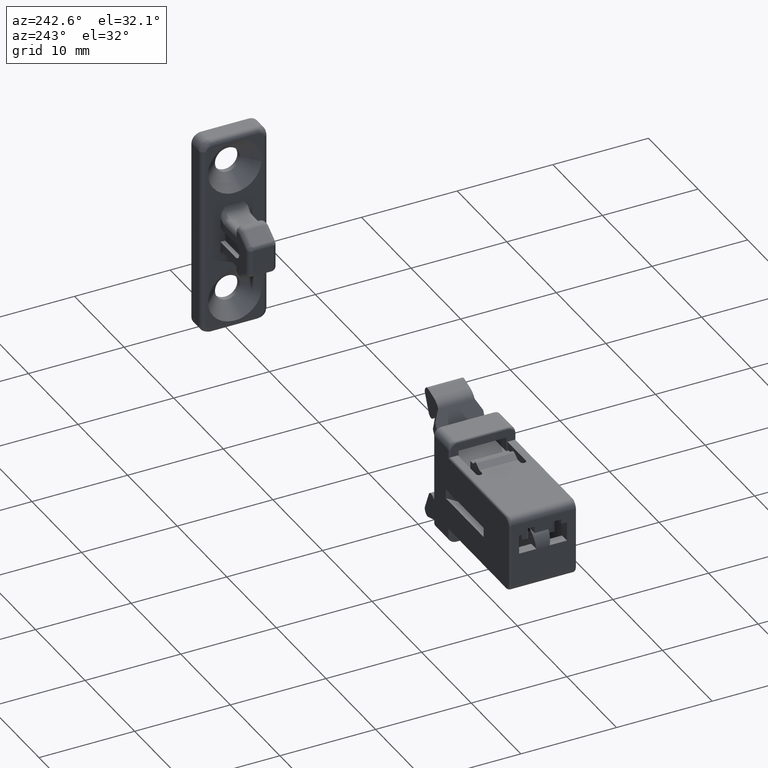
[diagram: clean part render]
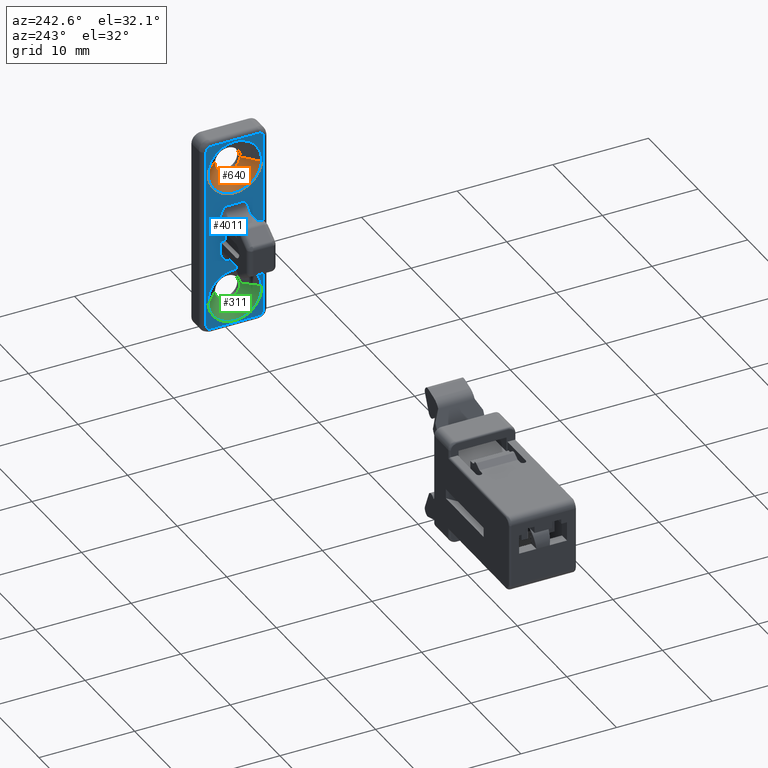
[diagram: same view with three faces highlighted in distinct colors, each labeled with its STEP entity id]
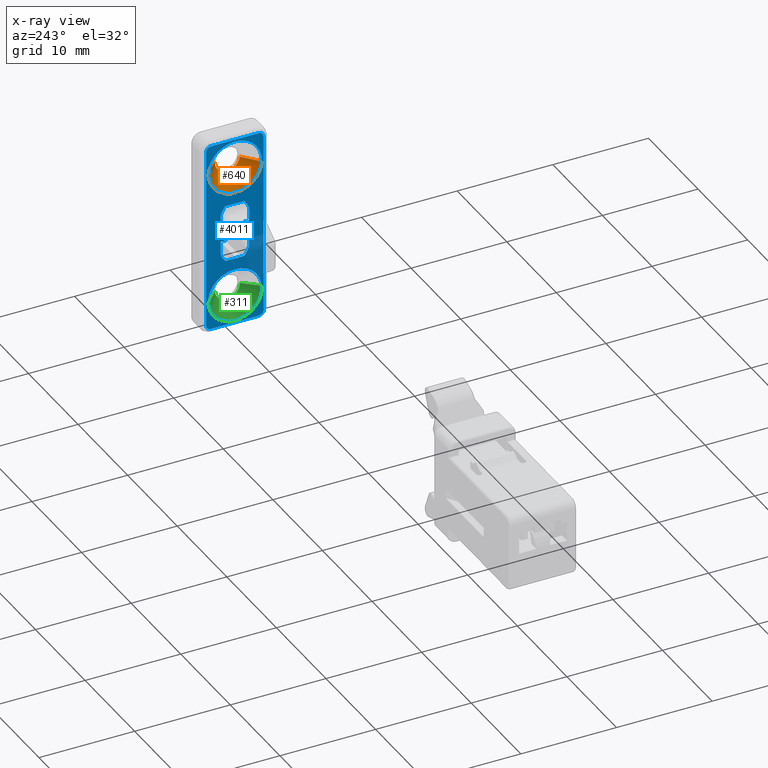
[diagram: x-ray of the same camera — body ghosted, the three highlighted faces saturated]
A machine part, auxiliary view with three faces highlighted in distinct colors.
The next image is the same camera in x-ray (body ghosted, the three faces saturated) — at least one of them is partly hidden behind the body in this view.
Their STEP definitions:

[orange] entity #640 — the highlighted face is a freeform B-spline surface patch.
#386=CARTESIAN_POINT('',(48.472754035771999,0.457103366790558,5.783013347620964));
#387=VERTEX_POINT('',#386);
#388=CARTESIAN_POINT('',(48.472754035772013,0.0,5.700000000000000));
#389=VERTEX_POINT('',#388);
#390=CARTESIAN_POINT('',(48.472754035772006,0.457103366790558,5.783013347620964));
#391=CARTESIAN_POINT('',(48.472754035772006,0.236089601976736,5.700000000000000));
#392=CARTESIAN_POINT('',(48.472754035772013,0.0,5.700000000000000));
#400=(BOUNDED_CURVE()B_SPLINE_CURVE(2,(#390,#391,#392),.UNSPECIFIED.,.F.,.U.)B_SPLINE_CURVE_WITH_KNOTS((3,3),(0.440284170877750,0.500000000000000),.UNSPECIFIED.)CURVE()GEOMETRIC_REPRESENTATION_ITEM()RATIONAL_B_SPLINE_CURVE((0.893499554609872,0.930038554377081,1.0))REPRESENTATION_ITEM(''));
#401=EDGE_CURVE('',#387,#389,#400,.T.);
#403=CARTESIAN_POINT('',(48.472754035625762,-1.297575237987626,6.920636898047811));
#404=VERTEX_POINT('',#403);
#405=CARTESIAN_POINT('',(48.472754035772013,0.0,5.700000000000000));
#406=CARTESIAN_POINT('',(48.472754035772006,-1.222917884891000,5.699999999999999));
#407=CARTESIAN_POINT('',(48.472754035625755,-1.297575237987627,6.920636898047811));
#415=(BOUNDED_CURVE()B_SPLINE_CURVE(2,(#405,#406,#407),.UNSPECIFIED.,.F.,.U.)B_SPLINE_CURVE_WITH_KNOTS((3,3),(0.500000000000000,0.739332961948138),.UNSPECIFIED.)CURVE()GEOMETRIC_REPRESENTATION_ITEM()RATIONAL_B_SPLINE_CURVE((1.0,0.719603993627410,0.976072041043467))REPRESENTATION_ITEM(''));
#416=EDGE_CURVE('',#389,#404,#415,.T.);
#485=CARTESIAN_POINT('',(48.472754035655157,1.290912384281071,7.153444505973802));
#486=VERTEX_POINT('',#485);
#487=CARTESIAN_POINT('',(48.472754035655164,1.290912384281071,7.153444505973804));
#488=CARTESIAN_POINT('',(48.472754035772006,1.300000000000000,7.076991356463288));
#489=CARTESIAN_POINT('',(48.472754035772013,1.300000000000000,7.0));
#490=CARTESIAN_POINT('',(48.472754035772020,1.300000000000000,6.099607525726101));
#491=CARTESIAN_POINT('',(48.472754035771999,0.457103366790558,5.783013347620964));
#499=(BOUNDED_CURVE()B_SPLINE_CURVE(2,(#487,#488,#489,#490,#491),.UNSPECIFIED.,.F.,.U.)B_SPLINE_CURVE_WITH_KNOTS((3,2,3),(0.229562473278362,0.250000000000000,0.440284170877750),.UNSPECIFIED.)CURVE()GEOMETRIC_REPRESENTATION_ITEM()RATIONAL_B_SPLINE_CURVE((0.956026753722804,0.976055948055655,1.0,0.777068226809467,0.893499554609872))REPRESENTATION_ITEM(''));
#500=EDGE_CURVE('',#486,#387,#499,.T.);
#569=CARTESIAN_POINT('',(48.510254035772007,1.253674527034122,7.149018221254156));
#570=CARTESIAN_POINT('',(48.510254035772014,1.257939364503858,7.113138594905446));
#571=CARTESIAN_POINT('',(48.510254035772007,1.260145183007600,7.077073781162756));
#572=CARTESIAN_POINT('',(48.510254035772014,1.337218964170357,5.816928598155156));
#573=CARTESIAN_POINT('',(48.510254035772007,0.077073781162757,5.739854816992400));
#574=CARTESIAN_POINT('',(48.510254035772014,-1.183071401844844,5.662781035829644));
#575=CARTESIAN_POINT('',(48.510254035772007,-1.260145183007600,6.922926218837244));
#576=CARTESIAN_POINT('',(46.934316535771998,2.818595477487886,7.335032797933545));
#577=CARTESIAN_POINT('',(46.934316535771991,2.828183972224918,7.254365806318361));
#578=CARTESIAN_POINT('',(46.934316535771991,2.833143241895584,7.173282463935972));
#579=CARTESIAN_POINT('',(46.934316535771998,3.006425705831556,4.340139222040389));
#580=CARTESIAN_POINT('',(46.934316535771991,0.173282463935972,4.166856758104416));
#581=CARTESIAN_POINT('',(46.934316535771998,-2.659860777959612,3.993574294168444));
#582=CARTESIAN_POINT('',(46.934316535771991,-2.833143241895584,6.826717536064028));
#590=(BOUNDED_SURFACE()B_SPLINE_SURFACE(2,1,((#569,#576),(#570,#577),(#571,#578),(#572,#579),(#573,#580),(#574,#581),(#575,#582)),.UNSPECIFIED.,.F.,.F.,.U.)B_SPLINE_SURFACE_WITH_KNOTS((3,2,2,3),(2,2),(0.0,0.188115089351743,4.890992323145298,9.593869556938854),(0.0,2.228712185952387),.UNSPECIFIED.)GEOMETRIC_REPRESENTATION_ITEM()RATIONAL_B_SPLINE_SURFACE(((0.977505800795127,0.977505800795127),(0.988284271247462,0.988284271247462),(1.0,1.0),(0.707106781186548,0.707106781186548),(1.0,1.0),(0.707106781186548,0.707106781186548),(1.0,1.0)))REPRESENTATION_ITEM('')SURFACE());
#591=ORIENTED_EDGE('',*,*,#500,.F.);
#592=CARTESIAN_POINT('',(46.972754035748373,2.780426673819996,7.330495857224559));
#593=VERTEX_POINT('',#592);
#594=CARTESIAN_POINT('',(48.472754035655157,1.290912384281071,7.153444505973802));
#595=CARTESIAN_POINT('',(46.972754035748373,2.780426673819996,7.330495857224559));
#596=QUASI_UNIFORM_CURVE('',1,(#594,#595),.UNSPECIFIED.,.F.,.U.);
#597=EDGE_CURVE('',#486,#593,#596,.T.);
#598=ORIENTED_EDGE('',*,*,#597,.T.);
#599=CARTESIAN_POINT('',(46.972754035771999,0.0,4.200000000000000));
#600=VERTEX_POINT('',#599);
#601=CARTESIAN_POINT('',(46.972754035748373,2.780426673819996,7.330495857224559));
#602=CARTESIAN_POINT('',(46.972754035772006,2.800000000000000,7.165827535210128));
#603=CARTESIAN_POINT('',(46.972754035771999,2.800000000000000,7.0));
#604=CARTESIAN_POINT('',(46.972754035771992,2.800000000000000,4.200000000000001));
#605=CARTESIAN_POINT('',(46.972754035771999,0.0,4.200000000000000));
#613=(BOUNDED_CURVE()B_SPLINE_CURVE(2,(#601,#602,#603,#604,#605),.UNSPECIFIED.,.F.,.U.)B_SPLINE_CURVE_WITH_KNOTS((3,2,3),(0.229562473493416,0.250000000000000,0.500000000000000),.UNSPECIFIED.)CURVE()GEOMETRIC_REPRESENTATION_ITEM()RATIONAL_B_SPLINE_CURVE((0.956026754144318,0.976055948307606,1.0,0.707106781186547,1.0))REPRESENTATION_ITEM(''));
#614=EDGE_CURVE('',#593,#600,#613,.T.);
#615=ORIENTED_EDGE('',*,*,#614,.T.);
#616=CARTESIAN_POINT('',(46.972754035702188,-2.794777435618764,6.829064088772516));
#617=VERTEX_POINT('',#616);
#618=CARTESIAN_POINT('',(46.972754035771999,0.0,4.200000000000000));
#619=CARTESIAN_POINT('',(46.972754035771992,-2.633976986343336,4.200000000000000));
#620=CARTESIAN_POINT('',(46.972754035702188,-2.794777435618764,6.829064088772516));
#628=(BOUNDED_CURVE()B_SPLINE_CURVE(2,(#618,#619,#620),.UNSPECIFIED.,.F.,.U.)B_SPLINE_CURVE_WITH_KNOTS((3,3),(0.500000000000000,0.739332962177066),.UNSPECIFIED.)CURVE()GEOMETRIC_REPRESENTATION_ITEM()RATIONAL_B_SPLINE_CURVE((1.0,0.719603993359204,0.976072041534103))REPRESENTATION_ITEM(''));
#629=EDGE_CURVE('',#600,#617,#628,.T.);
#630=ORIENTED_EDGE('',*,*,#629,.T.);
#631=CARTESIAN_POINT('',(48.472754035625762,-1.297575237987626,6.920636898047811));
#632=CARTESIAN_POINT('',(46.972754035702188,-2.794777435618764,6.829064088772516));
#633=QUASI_UNIFORM_CURVE('',1,(#631,#632),.UNSPECIFIED.,.F.,.U.);
#634=EDGE_CURVE('',#404,#617,#633,.T.);
#635=ORIENTED_EDGE('',*,*,#634,.F.);
#636=ORIENTED_EDGE('',*,*,#416,.F.);
#637=ORIENTED_EDGE('',*,*,#401,.F.);
#638=EDGE_LOOP('',(#591,#598,#615,#630,#635,#636,#637));
#639=FACE_OUTER_BOUND('',#638,.T.);
#640=ADVANCED_FACE('',(#639),#590,.F.);

[blue] entity #4011 — the highlighted face is a freeform B-spline surface patch.
#264=CARTESIAN_POINT('',(46.972754035704128,2.791368534479821,-7.219685468559268));
#265=VERTEX_POINT('',#264);
#271=CARTESIAN_POINT('',(46.972754035771999,0.0,-9.799999999999999));
#272=VERTEX_POINT('',#271);
#273=CARTESIAN_POINT('',(46.972754035771999,0.0,-9.799999999999999));
#274=CARTESIAN_POINT('',(46.972754035772013,2.588293375683145,-9.799999999999999));
#275=CARTESIAN_POINT('',(46.972754035704128,2.791368534479821,-7.219685468559268));
#283=(BOUNDED_CURVE()B_SPLINE_CURVE(2,(#273,#274,#275),.UNSPECIFIED.,.F.,.U.)B_SPLINE_CURVE_WITH_KNOTS((3,3),(0.0,0.236331300569392),.UNSPECIFIED.)CURVE()GEOMETRIC_REPRESENTATION_ITEM()RATIONAL_B_SPLINE_CURVE((1.0,0.723120658679445,0.969723356039558))REPRESENTATION_ITEM(''));
#284=EDGE_CURVE('',#272,#265,#283,.T.);
#286=CARTESIAN_POINT('',(46.972754035704121,-2.791368534479823,-6.780314531440732));
#287=VERTEX_POINT('',#286);
#288=CARTESIAN_POINT('',(46.972754035704128,-2.791368534479823,-6.780314531440733));
#289=CARTESIAN_POINT('',(46.972754035772006,-2.800000000000000,-6.889987699860155));
#290=CARTESIAN_POINT('',(46.972754035771999,-2.800000000000000,-7.0));
#291=CARTESIAN_POINT('',(46.972754035771992,-2.800000000000000,-9.800000000000001));
#292=CARTESIAN_POINT('',(46.972754035771999,0.0,-9.799999999999999));
#300=(BOUNDED_CURVE()B_SPLINE_CURVE(2,(#288,#289,#290,#291,#292),.UNSPECIFIED.,.F.,.U.)B_SPLINE_CURVE_WITH_KNOTS((3,2,3),(0.736331300569392,0.750000000000000,1.0),.UNSPECIFIED.)CURVE()GEOMETRIC_REPRESENTATION_ITEM()RATIONAL_B_SPLINE_CURVE((0.969723356039558,0.983986122507103,1.0,0.707106781186547,1.0))REPRESENTATION_ITEM(''));
#301=EDGE_CURVE('',#287,#272,#300,.T.);
#334=CARTESIAN_POINT('',(46.972754035771999,0.0,-4.200000000000000));
#335=VERTEX_POINT('',#334);
#336=CARTESIAN_POINT('',(46.972754035771999,0.0,-4.200000000000000));
#337=CARTESIAN_POINT('',(46.972754035772006,-2.588293375683145,-4.200000000000001));
#338=CARTESIAN_POINT('',(46.972754035704128,-2.791368534479823,-6.780314531440733));
#346=(BOUNDED_CURVE()B_SPLINE_CURVE(2,(#336,#337,#338),.UNSPECIFIED.,.F.,.U.)B_SPLINE_CURVE_WITH_KNOTS((3,3),(0.500000000000000,0.736331300569392),.UNSPECIFIED.)CURVE()GEOMETRIC_REPRESENTATION_ITEM()RATIONAL_B_SPLINE_CURVE((1.0,0.723120658679445,0.969723356039558))REPRESENTATION_ITEM(''));
#347=EDGE_CURVE('',#335,#287,#346,.T.);
#349=CARTESIAN_POINT('',(46.972754035704128,2.791368534479821,-7.219685468559268));
#350=CARTESIAN_POINT('',(46.972754035771999,2.800000000000000,-7.110012300139845));
#351=CARTESIAN_POINT('',(46.972754035771999,2.800000000000000,-7.0));
#352=CARTESIAN_POINT('',(46.972754035771992,2.800000000000000,-4.200000000000001));
#353=CARTESIAN_POINT('',(46.972754035771999,0.0,-4.200000000000000));
#361=(BOUNDED_CURVE()B_SPLINE_CURVE(2,(#349,#350,#351,#352,#353),.UNSPECIFIED.,.F.,.U.)B_SPLINE_CURVE_WITH_KNOTS((3,2,3),(0.236331300569392,0.250000000000000,0.500000000000000),.UNSPECIFIED.)CURVE()GEOMETRIC_REPRESENTATION_ITEM()RATIONAL_B_SPLINE_CURVE((0.969723356039558,0.983986122507103,1.0,0.707106781186547,1.0))REPRESENTATION_ITEM(''));
#362=EDGE_CURVE('',#265,#335,#361,.T.);
#592=CARTESIAN_POINT('',(46.972754035748373,2.780426673819996,7.330495857224559));
#593=VERTEX_POINT('',#592);
#599=CARTESIAN_POINT('',(46.972754035771999,0.0,4.200000000000000));
#600=VERTEX_POINT('',#599);
#601=CARTESIAN_POINT('',(46.972754035748373,2.780426673819996,7.330495857224559));
#602=CARTESIAN_POINT('',(46.972754035772006,2.800000000000000,7.165827535210128));
#603=CARTESIAN_POINT('',(46.972754035771999,2.800000000000000,7.0));
#604=CARTESIAN_POINT('',(46.972754035771992,2.800000000000000,4.200000000000001));
#605=CARTESIAN_POINT('',(46.972754035771999,0.0,4.200000000000000));
#613=(BOUNDED_CURVE()B_SPLINE_CURVE(2,(#601,#602,#603,#604,#605),.UNSPECIFIED.,.F.,.U.)B_SPLINE_CURVE_WITH_KNOTS((3,2,3),(0.229562473493416,0.250000000000000,0.500000000000000),.UNSPECIFIED.)CURVE()GEOMETRIC_REPRESENTATION_ITEM()RATIONAL_B_SPLINE_CURVE((0.956026754144318,0.976055948307606,1.0,0.707106781186547,1.0))REPRESENTATION_ITEM(''));
#614=EDGE_CURVE('',#593,#600,#613,.T.);
#616=CARTESIAN_POINT('',(46.972754035702188,-2.794777435618764,6.829064088772516));
#617=VERTEX_POINT('',#616);
#618=CARTESIAN_POINT('',(46.972754035771999,0.0,4.200000000000000));
#619=CARTESIAN_POINT('',(46.972754035771992,-2.633976986343336,4.200000000000000));
#620=CARTESIAN_POINT('',(46.972754035702188,-2.794777435618764,6.829064088772516));
#628=(BOUNDED_CURVE()B_SPLINE_CURVE(2,(#618,#619,#620),.UNSPECIFIED.,.F.,.U.)B_SPLINE_CURVE_WITH_KNOTS((3,3),(0.500000000000000,0.739332962177066),.UNSPECIFIED.)CURVE()GEOMETRIC_REPRESENTATION_ITEM()RATIONAL_B_SPLINE_CURVE((1.0,0.719603993359204,0.976072041534103))REPRESENTATION_ITEM(''));
#629=EDGE_CURVE('',#600,#617,#628,.T.);
#662=CARTESIAN_POINT('',(46.972754035771999,0.0,9.799999999999999));
#663=VERTEX_POINT('',#662);
#664=CARTESIAN_POINT('',(46.972754035702188,-2.794777435618764,6.829064088772516));
#665=CARTESIAN_POINT('',(46.972754035771985,-2.799999999999999,6.914452262236855));
#666=CARTESIAN_POINT('',(46.972754035771999,-2.800000000000000,7.0));
#667=CARTESIAN_POINT('',(46.972754035771992,-2.800000000000000,9.800000000000001));
#668=CARTESIAN_POINT('',(46.972754035771999,0.0,9.799999999999999));
#676=(BOUNDED_CURVE()B_SPLINE_CURVE(2,(#664,#665,#666,#667,#668),.UNSPECIFIED.,.F.,.U.)B_SPLINE_CURVE_WITH_KNOTS((3,2,3),(0.739332962177065,0.750000000000000,1.0),.UNSPECIFIED.)CURVE()GEOMETRIC_REPRESENTATION_ITEM()RATIONAL_B_SPLINE_CURVE((0.976072041534103,0.987502787827343,1.0,0.707106781186547,1.0))REPRESENTATION_ITEM(''));
#677=EDGE_CURVE('',#617,#663,#676,.T.);
#679=CARTESIAN_POINT('',(46.972754035771999,0.0,9.799999999999999));
#680=CARTESIAN_POINT('',(46.972754035771992,2.486888672334443,9.800000000000001));
#681=CARTESIAN_POINT('',(46.972754035748366,2.780426673819996,7.330495857224559));
#689=(BOUNDED_CURVE()B_SPLINE_CURVE(2,(#679,#680,#681),.UNSPECIFIED.,.F.,.U.)B_SPLINE_CURVE_WITH_KNOTS((3,3),(0.0,0.229562473493416),.UNSPECIFIED.)CURVE()GEOMETRIC_REPRESENTATION_ITEM()RATIONAL_B_SPLINE_CURVE((1.0,0.731050832878942,0.956026754144318))REPRESENTATION_ITEM(''));
#690=EDGE_CURVE('',#663,#593,#689,.T.);
#720=CARTESIAN_POINT('',(46.972754035771999,1.0,0.749999999999972));
#721=VERTEX_POINT('',#720);
#727=CARTESIAN_POINT('',(46.972754035771999,1.0,-0.749999999999929));
#728=VERTEX_POINT('',#727);
#729=CARTESIAN_POINT('',(46.972754035771999,1.0,0.749999999999972));
#730=CARTESIAN_POINT('',(46.972754035771999,1.0,-0.749999999999929));
#731=QUASI_UNIFORM_CURVE('',1,(#729,#730),.UNSPECIFIED.,.F.,.U.);
#732=EDGE_CURVE('',#721,#728,#731,.T.);
#755=CARTESIAN_POINT('',(46.972754035771999,1.499999999999946,0.749999999999972));
#756=VERTEX_POINT('',#755);
#762=CARTESIAN_POINT('',(46.972754035771999,1.499999999999946,0.749999999999972));
#763=CARTESIAN_POINT('',(46.972754035771999,1.0,0.749999999999972));
#764=QUASI_UNIFORM_CURVE('',1,(#762,#763),.UNSPECIFIED.,.F.,.U.);
#765=EDGE_CURVE('',#756,#721,#764,.T.);
#776=CARTESIAN_POINT('',(46.972754035771999,1.499999999999946,-0.749999999999929));
#777=VERTEX_POINT('',#776);
#778=CARTESIAN_POINT('',(46.972754035771999,1.499999999999946,-0.749999999999929));
#779=CARTESIAN_POINT('',(46.972754035771999,1.0,-0.749999999999929));
#780=QUASI_UNIFORM_CURVE('',1,(#778,#779),.UNSPECIFIED.,.F.,.U.);
#781=EDGE_CURVE('',#777,#728,#780,.T.);
#861=CARTESIAN_POINT('',(46.972754035771999,-1.0,-0.749999999999929));
#862=VERTEX_POINT('',#861);
#868=CARTESIAN_POINT('',(46.972754035771999,-1.0,0.749999999999972));
#869=VERTEX_POINT('',#868);
#870=CARTESIAN_POINT('',(46.972754035771999,-1.0,0.749999999999972));
#871=CARTESIAN_POINT('',(46.972754035771999,-1.0,-0.749999999999929));
#872=QUASI_UNIFORM_CURVE('',1,(#870,#871),.UNSPECIFIED.,.F.,.U.);
#873=EDGE_CURVE('',#869,#862,#872,.T.);
#889=CARTESIAN_POINT('',(46.972754035771999,-1.499999999999986,0.749999999999972));
#890=VERTEX_POINT('',#889);
#891=CARTESIAN_POINT('',(46.972754035771999,-1.499999999999986,0.749999999999972));
#892=CARTESIAN_POINT('',(46.972754035771999,-1.0,0.749999999999972));
#893=QUASI_UNIFORM_CURVE('',1,(#891,#892),.UNSPECIFIED.,.F.,.U.);
#894=EDGE_CURVE('',#890,#869,#893,.T.);
#924=CARTESIAN_POINT('',(46.972754035771999,-1.499999999999946,-0.749999999999929));
#925=VERTEX_POINT('',#924);
#931=CARTESIAN_POINT('',(46.972754035771999,-1.499999999999946,-0.749999999999929));
#932=CARTESIAN_POINT('',(46.972754035771999,-1.0,-0.749999999999929));
#933=QUASI_UNIFORM_CURVE('',1,(#931,#932),.UNSPECIFIED.,.F.,.U.);
#934=EDGE_CURVE('',#925,#862,#933,.T.);
#995=CARTESIAN_POINT('',(46.972754035771999,-1.499999999999986,-1.881966011250035));
#996=VERTEX_POINT('',#995);
#997=CARTESIAN_POINT('',(46.972754035771999,-1.0,-2.999999999999930));
#998=VERTEX_POINT('',#997);
#999=CARTESIAN_POINT('',(46.972754035771999,-1.499999999999986,-1.881966011250035));
#1000=CARTESIAN_POINT('',(46.972754035771999,-1.499999999999987,-1.987303138162540));
#1001=CARTESIAN_POINT('',(46.972754035772013,-1.482080296711527,-2.089554886287200));
#1002=CARTESIAN_POINT('',(46.972754035771992,-1.437527121952923,-2.239889499846338));
#1003=CARTESIAN_POINT('',(46.972754035771999,-1.419668520353440,-2.289278154830708));
#1004=CARTESIAN_POINT('',(46.972754035771999,-1.379900334130791,-2.385111396319775));
#1005=CARTESIAN_POINT('',(46.972754035771992,-1.357897590448445,-2.431861551645441));
#1006=CARTESIAN_POINT('',(46.972754035771999,-1.239817487462453,-2.661171219017799));
#1007=CARTESIAN_POINT('',(46.972754035772013,-1.119868239859274,-2.830479014292744));
#1008=CARTESIAN_POINT('',(46.972754035771999,-1.0,-2.999999999999930));
#1009=B_SPLINE_CURVE_WITH_KNOTS('',3,(#999,#1000,#1001,#1002,#1003,#1004,#1005,#1006,#1007,#1008),.UNSPECIFIED.,.F.,.U.,(4,2,2,2,4),(0.0,0.249999999999999,0.374999999999999,0.499999999999999,1.0),.UNSPECIFIED.);
#1010=EDGE_CURVE('',#996,#998,#1009,.T.);
#1820=CARTESIAN_POINT('',(46.972754035771999,-1.0,3.000000000000085));
#1821=VERTEX_POINT('',#1820);
#1822=CARTESIAN_POINT('',(46.972754035771999,-1.499999999999986,1.881966011250190));
#1823=VERTEX_POINT('',#1822);
#1824=CARTESIAN_POINT('',(46.972754035771999,-1.0,3.000000000000085));
#1825=CARTESIAN_POINT('',(46.972754035771999,-1.119868239859280,2.830479014292904));
#1826=CARTESIAN_POINT('',(46.972754035772013,-1.239817487462454,2.661171219017954));
#1827=CARTESIAN_POINT('',(46.972754035771992,-1.357897590448445,2.431861551645596));
#1828=CARTESIAN_POINT('',(46.972754035771999,-1.379900334130791,2.385111396319928));
#1829=CARTESIAN_POINT('',(46.972754035772013,-1.419668520353440,2.289278154830863));
#1830=CARTESIAN_POINT('',(46.972754035771992,-1.437527121952923,2.239889499846493));
#1831=CARTESIAN_POINT('',(46.972754035771999,-1.482080296711527,2.089554886287355));
#1832=CARTESIAN_POINT('',(46.972754035772013,-1.499999999999987,1.987303138162695));
#1833=CARTESIAN_POINT('',(46.972754035771999,-1.499999999999986,1.881966011250190));
#1834=B_SPLINE_CURVE_WITH_KNOTS('',3,(#1824,#1825,#1826,#1827,#1828,#1829,#1830,#1831,#1832,#1833),.UNSPECIFIED.,.F.,.U.,(4,2,2,2,4),(0.0,0.500000000000000,0.625000000000000,0.750000000000000,1.0),.UNSPECIFIED.);
#1835=EDGE_CURVE('',#1821,#1823,#1834,.T.);
#1884=CARTESIAN_POINT('',(46.972754035771999,1.0,-2.999999999999930));
#1885=VERTEX_POINT('',#1884);
#1886=CARTESIAN_POINT('',(46.972754035771999,1.500000000000000,-1.881966011250035));
#1887=VERTEX_POINT('',#1886);
#1888=CARTESIAN_POINT('',(46.972754035771999,1.0,-2.999999999999930));
#1889=CARTESIAN_POINT('',(46.972754035771992,1.119868239859445,-2.830479014292863));
#1890=CARTESIAN_POINT('',(46.972754035771999,1.239817487462453,-2.661171219017799));
#1891=CARTESIAN_POINT('',(46.972754035771999,1.357897590448445,-2.431861551645441));
#1892=CARTESIAN_POINT('',(46.972754035771999,1.379900334130791,-2.385111396319774));
#1893=CARTESIAN_POINT('',(46.972754035771999,1.419668520353440,-2.289278154830708));
#1894=CARTESIAN_POINT('',(46.972754035772013,1.437527121952923,-2.239889499846339));
#1895=CARTESIAN_POINT('',(46.972754035772013,1.482080296711527,-2.089554886287200));
#1896=CARTESIAN_POINT('',(46.972754035772013,1.500000000000001,-1.987303138162541));
#1897=CARTESIAN_POINT('',(46.972754035771999,1.500000000000000,-1.881966011250035));
#1898=B_SPLINE_CURVE_WITH_KNOTS('',3,(#1888,#1889,#1890,#1891,#1892,#1893,#1894,#1895,#1896,#1897),.UNSPECIFIED.,.F.,.U.,(4,2,2,2,4),(0.0,0.500000000000002,0.625000000000002,0.750000000000002,1.0),.UNSPECIFIED.);
#1899=EDGE_CURVE('',#1885,#1887,#1898,.T.);
#2709=CARTESIAN_POINT('',(46.972754035771999,1.500000000000000,1.881966011250190));
#2710=VERTEX_POINT('',#2709);
#2711=CARTESIAN_POINT('',(46.972754035771999,1.0,3.000000000000085));
#2712=VERTEX_POINT('',#2711);
#2713=CARTESIAN_POINT('',(46.972754035771999,1.500000000000000,1.881966011250190));
#2714=CARTESIAN_POINT('',(46.972754035772013,1.500000000000001,1.987303138162695));
#2715=CARTESIAN_POINT('',(46.972754035772013,1.482080296711527,2.089554886287354));
#2716=CARTESIAN_POINT('',(46.972754035772013,1.437527121952923,2.239889499846493));
#2717=CARTESIAN_POINT('',(46.972754035771999,1.419668520353440,2.289278154830863));
#2718=CARTESIAN_POINT('',(46.972754035771999,1.379900334130791,2.385111396319929));
#2719=CARTESIAN_POINT('',(46.972754035771999,1.357897590448445,2.431861551645596));
#2720=CARTESIAN_POINT('',(46.972754035771999,1.239817487462453,2.661171219017954));
#2721=CARTESIAN_POINT('',(46.972754035771992,1.119868239859445,2.830479014293018));
#2722=CARTESIAN_POINT('',(46.972754035771999,1.0,3.000000000000085));
#2723=B_SPLINE_CURVE_WITH_KNOTS('',3,(#2713,#2714,#2715,#2716,#2717,#2718,#2719,#2720,#2721,#2722),.UNSPECIFIED.,.F.,.U.,(4,2,2,2,4),(0.0,0.249999999999999,0.374999999999998,0.499999999999998,1.0),.UNSPECIFIED.);
#2724=EDGE_CURVE('',#2710,#2712,#2723,.T.);
#2764=CARTESIAN_POINT('',(46.972754035771999,-1.499999999999986,0.749999999999972));
#2765=CARTESIAN_POINT('',(46.972754035771999,-1.499999999999986,1.881966011250190));
#2766=QUASI_UNIFORM_CURVE('',1,(#2764,#2765),.UNSPECIFIED.,.F.,.U.);
#2767=EDGE_CURVE('',#890,#1823,#2766,.T.);
#2780=CARTESIAN_POINT('',(46.972754035771999,-1.499999999999986,-1.881966011250035));
#2781=CARTESIAN_POINT('',(46.972754035771999,-1.499999999999946,-0.749999999999929));
#2782=QUASI_UNIFORM_CURVE('',1,(#2780,#2781),.UNSPECIFIED.,.F.,.U.);
#2783=EDGE_CURVE('',#996,#925,#2782,.T.);
#2795=CARTESIAN_POINT('',(46.972754035771999,1.500000000000000,-1.881966011250035));
#2796=CARTESIAN_POINT('',(46.972754035771999,1.499999999999946,-0.749999999999929));
#2797=QUASI_UNIFORM_CURVE('',1,(#2795,#2796),.UNSPECIFIED.,.F.,.U.);
#2798=EDGE_CURVE('',#1887,#777,#2797,.T.);
#2811=CARTESIAN_POINT('',(46.972754035771999,1.499999999999946,0.749999999999972));
#2812=CARTESIAN_POINT('',(46.972754035771999,1.500000000000000,1.881966011250190));
#2813=QUASI_UNIFORM_CURVE('',1,(#2811,#2812),.UNSPECIFIED.,.F.,.U.);
#2814=EDGE_CURVE('',#756,#2710,#2813,.T.);
#2913=CARTESIAN_POINT('',(46.972754035771999,1.0,3.000000000000085));
#2914=CARTESIAN_POINT('',(46.972754035771999,-1.0,3.000000000000085));
#2915=QUASI_UNIFORM_CURVE('',1,(#2913,#2914),.UNSPECIFIED.,.F.,.U.);
#2916=EDGE_CURVE('',#2712,#1821,#2915,.T.);
#2936=CARTESIAN_POINT('',(46.972754035771999,1.0,-2.999999999999930));
#2937=CARTESIAN_POINT('',(46.972754035771999,-1.0,-2.999999999999930));
#2938=QUASI_UNIFORM_CURVE('',1,(#2936,#2937),.UNSPECIFIED.,.F.,.U.);
#2939=EDGE_CURVE('',#1885,#998,#2938,.T.);
#3182=CARTESIAN_POINT('',(46.972754035771999,3.000000000000060,9.500000000000000));
#3183=VERTEX_POINT('',#3182);
#3206=CARTESIAN_POINT('',(46.972754035771999,3.000000000000060,-9.500000000000000));
#3207=VERTEX_POINT('',#3206);
#3221=CARTESIAN_POINT('',(46.972754035771999,3.000000000000060,9.500000000000000));
#3222=CARTESIAN_POINT('',(46.972754035771999,3.000000000000060,-9.500000000000000));
#3223=QUASI_UNIFORM_CURVE('',1,(#3221,#3222),.UNSPECIFIED.,.F.,.U.);
#3224=EDGE_CURVE('',#3183,#3207,#3223,.T.);
#3274=CARTESIAN_POINT('',(46.972754035771999,2.500000000000060,-10.0));
#3275=VERTEX_POINT('',#3274);
#3289=CARTESIAN_POINT('',(46.972754035771999,3.000000000000060,-9.500000000000000));
#3290=CARTESIAN_POINT('',(46.972754035771999,3.000000000000060,-10.000000000000002));
#3291=CARTESIAN_POINT('',(46.972754035771999,2.500000000000060,-10.0));
#3299=(BOUNDED_CURVE()B_SPLINE_CURVE(2,(#3289,#3290,#3291),.UNSPECIFIED.,.F.,.U.)CURVE()GEOMETRIC_REPRESENTATION_ITEM()QUASI_UNIFORM_CURVE()RATIONAL_B_SPLINE_CURVE((1.0,0.707106781186548,1.0))REPRESENTATION_ITEM(''));
#3300=EDGE_CURVE('',#3207,#3275,#3299,.T.);
#3352=CARTESIAN_POINT('',(46.972754035771999,2.500000000000060,10.0));
#3353=VERTEX_POINT('',#3352);
#3383=CARTESIAN_POINT('',(46.972754035771999,2.500000000000060,10.0));
#3384=CARTESIAN_POINT('',(46.972754035771999,3.000000000000060,10.000000000000002));
#3385=CARTESIAN_POINT('',(46.972754035771999,3.000000000000060,9.500000000000000));
#3393=(BOUNDED_CURVE()B_SPLINE_CURVE(2,(#3383,#3384,#3385),.UNSPECIFIED.,.F.,.U.)CURVE()GEOMETRIC_REPRESENTATION_ITEM()QUASI_UNIFORM_CURVE()RATIONAL_B_SPLINE_CURVE((1.0,0.707106781186548,1.0))REPRESENTATION_ITEM(''));
#3394=EDGE_CURVE('',#3353,#3183,#3393,.T.);
#3415=CARTESIAN_POINT('',(46.972754035771999,-2.499999999999945,-10.0));
#3416=VERTEX_POINT('',#3415);
#3430=CARTESIAN_POINT('',(46.972754035771999,2.500000000000060,-10.0));
#3431=CARTESIAN_POINT('',(46.972754035771999,-2.499999999999945,-10.0));
#3432=QUASI_UNIFORM_CURVE('',1,(#3430,#3431),.UNSPECIFIED.,.F.,.U.);
#3433=EDGE_CURVE('',#3275,#3416,#3432,.T.);
#3458=CARTESIAN_POINT('',(46.972754035771999,-2.499999999999975,10.0));
#3459=VERTEX_POINT('',#3458);
#3481=CARTESIAN_POINT('',(46.972754035771999,-2.499999999999975,10.0));
#3482=CARTESIAN_POINT('',(46.972754035771999,2.500000000000060,10.0));
#3483=QUASI_UNIFORM_CURVE('',1,(#3481,#3482),.UNSPECIFIED.,.F.,.U.);
#3484=EDGE_CURVE('',#3459,#3353,#3483,.T.);
#3534=CARTESIAN_POINT('',(46.972754035771999,-3.0,-9.500000000000000));
#3535=VERTEX_POINT('',#3534);
#3549=CARTESIAN_POINT('',(46.972754035771999,-2.499999999999945,-10.0));
#3550=CARTESIAN_POINT('',(46.972754035771999,-2.707106781186509,-10.000000000000021));
#3551=CARTESIAN_POINT('',(46.972754035771999,-2.853553390593254,-9.853553390593293));
#3552=CARTESIAN_POINT('',(46.972754035771999,-3.0,-9.707106781186564));
#3553=CARTESIAN_POINT('',(46.972754035771999,-3.0,-9.500000000000000));
#3561=(BOUNDED_CURVE()B_SPLINE_CURVE(2,(#3549,#3550,#3551,#3552,#3553),.UNSPECIFIED.,.F.,.U.)B_SPLINE_CURVE_WITH_KNOTS((3,2,3),(0.0,0.500000000000000,1.0),.UNSPECIFIED.)CURVE()GEOMETRIC_REPRESENTATION_ITEM()RATIONAL_B_SPLINE_CURVE((1.0,0.923879532511276,1.0,0.923879532511276,1.0))REPRESENTATION_ITEM(''));
#3562=EDGE_CURVE('',#3416,#3535,#3561,.T.);
#3616=CARTESIAN_POINT('',(46.972754035771999,-3.0,9.500000000000000));
#3617=VERTEX_POINT('',#3616);
#3647=CARTESIAN_POINT('',(46.972754035771999,-3.0,9.500000000000000));
#3648=CARTESIAN_POINT('',(46.972754035771999,-3.0,10.000000000000002));
#3649=CARTESIAN_POINT('',(46.972754035771999,-2.500000000000000,10.0));
#3657=(BOUNDED_CURVE()B_SPLINE_CURVE(2,(#3647,#3648,#3649),.UNSPECIFIED.,.F.,.U.)CURVE()GEOMETRIC_REPRESENTATION_ITEM()QUASI_UNIFORM_CURVE()RATIONAL_B_SPLINE_CURVE((1.0,0.707106781186548,1.0))REPRESENTATION_ITEM(''));
#3658=EDGE_CURVE('',#3617,#3459,#3657,.T.);
#3684=CARTESIAN_POINT('',(46.972754035771999,-3.0,-9.500000000000000));
#3685=CARTESIAN_POINT('',(46.972754035771999,-3.0,9.500000000000000));
#3686=QUASI_UNIFORM_CURVE('',1,(#3684,#3685),.UNSPECIFIED.,.F.,.U.);
#3687=EDGE_CURVE('',#3535,#3617,#3686,.T.);
#3966=CARTESIAN_POINT('',(46.972754035771999,-3.299699988370839,-10.998999961236120));
#3967=CARTESIAN_POINT('',(46.972754035771999,-3.299699988370839,10.999000497677921));
#3968=CARTESIAN_POINT('',(46.972754035771999,3.299700149303440,-10.998999961236120));
#3969=CARTESIAN_POINT('',(46.972754035771999,3.299700149303440,10.999000497677921));
#3970=B_SPLINE_SURFACE_WITH_KNOTS('',1,1,((#3966,#3968),(#3967,#3969)),.UNSPECIFIED.,.F.,.F.,.U.,(2,2),(2,2),(0.0,21.998000458914039),(0.0,6.599400137674279),.UNSPECIFIED.);
#3971=ORIENTED_EDGE('',*,*,#3394,.T.);
#3972=ORIENTED_EDGE('',*,*,#3224,.T.);
#3973=ORIENTED_EDGE('',*,*,#3300,.T.);
#3974=ORIENTED_EDGE('',*,*,#3433,.T.);
#3975=ORIENTED_EDGE('',*,*,#3562,.T.);
#3976=ORIENTED_EDGE('',*,*,#3687,.T.);
#3977=ORIENTED_EDGE('',*,*,#3658,.T.);
#3978=ORIENTED_EDGE('',*,*,#3484,.T.);
#3979=EDGE_LOOP('',(#3971,#3972,#3973,#3974,#3975,#3976,#3977,#3978));
#3980=FACE_OUTER_BOUND('',#3979,.T.);
#3981=ORIENTED_EDGE('',*,*,#2939,.F.);
#3982=ORIENTED_EDGE('',*,*,#1899,.T.);
#3983=ORIENTED_EDGE('',*,*,#2798,.T.);
#3984=ORIENTED_EDGE('',*,*,#781,.T.);
#3985=ORIENTED_EDGE('',*,*,#732,.F.);
#3986=ORIENTED_EDGE('',*,*,#765,.F.);
#3987=ORIENTED_EDGE('',*,*,#2814,.T.);
#3988=ORIENTED_EDGE('',*,*,#2724,.T.);
#3989=ORIENTED_EDGE('',*,*,#2916,.T.);
#3990=ORIENTED_EDGE('',*,*,#1835,.T.);
#3991=ORIENTED_EDGE('',*,*,#2767,.F.);
#3992=ORIENTED_EDGE('',*,*,#894,.T.);
#3993=ORIENTED_EDGE('',*,*,#873,.T.);
#3994=ORIENTED_EDGE('',*,*,#934,.F.);
#3995=ORIENTED_EDGE('',*,*,#2783,.F.);
#3996=ORIENTED_EDGE('',*,*,#1010,.T.);
#3997=EDGE_LOOP('',(#3981,#3982,#3983,#3984,#3985,#3986,#3987,#3988,#3989,#3990,#3991,#3992,#3993,#3994,#3995,#3996));
#3998=FACE_BOUND('',#3997,.T.);
#3999=ORIENTED_EDGE('',*,*,#629,.F.);
#4000=ORIENTED_EDGE('',*,*,#614,.F.);
#4001=ORIENTED_EDGE('',*,*,#690,.F.);
#4002=ORIENTED_EDGE('',*,*,#677,.F.);
#4003=EDGE_LOOP('',(#3999,#4000,#4001,#4002));
#4004=FACE_BOUND('',#4003,.T.);
#4005=ORIENTED_EDGE('',*,*,#347,.T.);
#4006=ORIENTED_EDGE('',*,*,#301,.T.);
#4007=ORIENTED_EDGE('',*,*,#284,.T.);
#4008=ORIENTED_EDGE('',*,*,#362,.T.);
#4009=EDGE_LOOP('',(#4005,#4006,#4007,#4008));
#4010=FACE_BOUND('',#4009,.T.);
#4011=ADVANCED_FACE('',(#3980,#3998,#4004,#4010),#3970,.T.);

[green] entity #311 — the highlighted face is a freeform B-spline surface patch.
#109=CARTESIAN_POINT('',(48.472754035749787,1.295992533861746,-7.101996824619182));
#110=VERTEX_POINT('',#109);
#126=CARTESIAN_POINT('',(48.472754035772013,0.0,-8.300000000000001));
#127=VERTEX_POINT('',#126);
#128=CARTESIAN_POINT('',(48.472754035772013,0.0,-8.300000000000001));
#129=CARTESIAN_POINT('',(48.472754035771992,1.201707638837124,-8.300000000000001));
#130=CARTESIAN_POINT('',(48.472754035749787,1.295992533861745,-7.101996824619182));
#138=(BOUNDED_CURVE()B_SPLINE_CURVE(2,(#128,#129,#130),.UNSPECIFIED.,.F.,.U.)B_SPLINE_CURVE_WITH_KNOTS((3,3),(0.0,0.236331300587466),.UNSPECIFIED.)CURVE()GEOMETRIC_REPRESENTATION_ITEM()RATIONAL_B_SPLINE_CURVE((1.0,0.723120658658270,0.969723356077276))REPRESENTATION_ITEM(''));
#139=EDGE_CURVE('',#127,#110,#138,.T.);
#141=CARTESIAN_POINT('',(48.472754035749787,-1.295992533857405,-6.898003175467309));
#142=VERTEX_POINT('',#141);
#143=CARTESIAN_POINT('',(48.472754035749787,-1.295992533857405,-6.898003175467309));
#144=CARTESIAN_POINT('',(48.472754035772006,-1.300000000000000,-6.948922860717996));
#145=CARTESIAN_POINT('',(48.472754035772013,-1.300000000000000,-7.0));
#146=CARTESIAN_POINT('',(48.472754035771999,-1.300000000000000,-8.300000000000001));
#147=CARTESIAN_POINT('',(48.472754035772013,0.0,-8.300000000000001));
#155=(BOUNDED_CURVE()B_SPLINE_CURVE(2,(#143,#144,#145,#146,#147),.UNSPECIFIED.,.F.,.U.)B_SPLINE_CURVE_WITH_KNOTS((3,2,3),(0.736331300587466,0.750000000000000,1.0),.UNSPECIFIED.)CURVE()GEOMETRIC_REPRESENTATION_ITEM()RATIONAL_B_SPLINE_CURVE((0.969723356077277,0.983986122528278,1.0,0.707106781186548,1.0))REPRESENTATION_ITEM(''));
#156=EDGE_CURVE('',#142,#127,#155,.T.);
#245=CARTESIAN_POINT('',(48.510254035772007,1.258608133838067,-7.099054608356404));
#246=CARTESIAN_POINT('',(48.510254035772014,1.159553525481663,-8.357662742194471));
#247=CARTESIAN_POINT('',(48.510254035772007,-0.099054608356404,-8.258608133838067));
#248=CARTESIAN_POINT('',(48.510254035772014,-1.357662742194472,-8.159553525481663));
#249=CARTESIAN_POINT('',(48.510254035772007,-1.258608133838067,-6.900945391643596));
#250=CARTESIAN_POINT('',(46.934316535771991,2.829687544468141,-7.222701239530008));
#251=CARTESIAN_POINT('',(46.934316535771998,2.606986304938132,-10.052388783998149));
#252=CARTESIAN_POINT('',(46.934316535771991,-0.222701239530008,-9.829687544468140));
#253=CARTESIAN_POINT('',(46.934316535771998,-3.052388783998149,-9.606986304938133));
#254=CARTESIAN_POINT('',(46.934316535771991,-2.829687544468141,-6.777298760469992));
#262=(BOUNDED_SURFACE()B_SPLINE_SURFACE(2,1,((#245,#250),(#246,#251),(#247,#252),(#248,#253),(#249,#254)),.UNSPECIFIED.,.F.,.F.,.U.)B_SPLINE_SURFACE_WITH_KNOTS((3,2,3),(2,2),(0.0,4.702877233793552,9.405754467587103),(0.0,2.228712185952382),.UNSPECIFIED.)GEOMETRIC_REPRESENTATION_ITEM()RATIONAL_B_SPLINE_SURFACE(((1.0,1.0),(0.707106781186548,0.707106781186548),(1.0,1.0),(0.707106781186548,0.707106781186548),(1.0,1.0)))REPRESENTATION_ITEM('')SURFACE());
#263=ORIENTED_EDGE('',*,*,#139,.T.);
#264=CARTESIAN_POINT('',(46.972754035704128,2.791368534479821,-7.219685468559268));
#265=VERTEX_POINT('',#264);
#266=CARTESIAN_POINT('',(48.472754035749787,1.295992533861746,-7.101996824619182));
#267=CARTESIAN_POINT('',(46.972754035704128,2.791368534479821,-7.219685468559268));
#268=QUASI_UNIFORM_CURVE('',1,(#266,#267),.UNSPECIFIED.,.F.,.U.);
#269=EDGE_CURVE('',#110,#265,#268,.T.);
#270=ORIENTED_EDGE('',*,*,#269,.T.);
#271=CARTESIAN_POINT('',(46.972754035771999,0.0,-9.799999999999999));
#272=VERTEX_POINT('',#271);
#273=CARTESIAN_POINT('',(46.972754035771999,0.0,-9.799999999999999));
#274=CARTESIAN_POINT('',(46.972754035772013,2.588293375683145,-9.799999999999999));
#275=CARTESIAN_POINT('',(46.972754035704128,2.791368534479821,-7.219685468559268));
#283=(BOUNDED_CURVE()B_SPLINE_CURVE(2,(#273,#274,#275),.UNSPECIFIED.,.F.,.U.)B_SPLINE_CURVE_WITH_KNOTS((3,3),(0.0,0.236331300569392),.UNSPECIFIED.)CURVE()GEOMETRIC_REPRESENTATION_ITEM()RATIONAL_B_SPLINE_CURVE((1.0,0.723120658679445,0.969723356039558))REPRESENTATION_ITEM(''));
#284=EDGE_CURVE('',#272,#265,#283,.T.);
#285=ORIENTED_EDGE('',*,*,#284,.F.);
#286=CARTESIAN_POINT('',(46.972754035704121,-2.791368534479823,-6.780314531440732));
#287=VERTEX_POINT('',#286);
#288=CARTESIAN_POINT('',(46.972754035704128,-2.791368534479823,-6.780314531440733));
#289=CARTESIAN_POINT('',(46.972754035772006,-2.800000000000000,-6.889987699860155));
#290=CARTESIAN_POINT('',(46.972754035771999,-2.800000000000000,-7.0));
#291=CARTESIAN_POINT('',(46.972754035771992,-2.800000000000000,-9.800000000000001));
#292=CARTESIAN_POINT('',(46.972754035771999,0.0,-9.799999999999999));
#300=(BOUNDED_CURVE()B_SPLINE_CURVE(2,(#288,#289,#290,#291,#292),.UNSPECIFIED.,.F.,.U.)B_SPLINE_CURVE_WITH_KNOTS((3,2,3),(0.736331300569392,0.750000000000000,1.0),.UNSPECIFIED.)CURVE()GEOMETRIC_REPRESENTATION_ITEM()RATIONAL_B_SPLINE_CURVE((0.969723356039558,0.983986122507103,1.0,0.707106781186547,1.0))REPRESENTATION_ITEM(''));
#301=EDGE_CURVE('',#287,#272,#300,.T.);
#302=ORIENTED_EDGE('',*,*,#301,.F.);
#303=CARTESIAN_POINT('',(48.472754035749787,-1.295992533857405,-6.898003175467309));
#304=CARTESIAN_POINT('',(46.972754035704121,-2.791368534479823,-6.780314531440732));
#305=QUASI_UNIFORM_CURVE('',1,(#303,#304),.UNSPECIFIED.,.F.,.U.);
#306=EDGE_CURVE('',#142,#287,#305,.T.);
#307=ORIENTED_EDGE('',*,*,#306,.F.);
#308=ORIENTED_EDGE('',*,*,#156,.T.);
#309=EDGE_LOOP('',(#263,#270,#285,#302,#307,#308));
#310=FACE_OUTER_BOUND('',#309,.T.);
#311=ADVANCED_FACE('',(#310),#262,.F.);